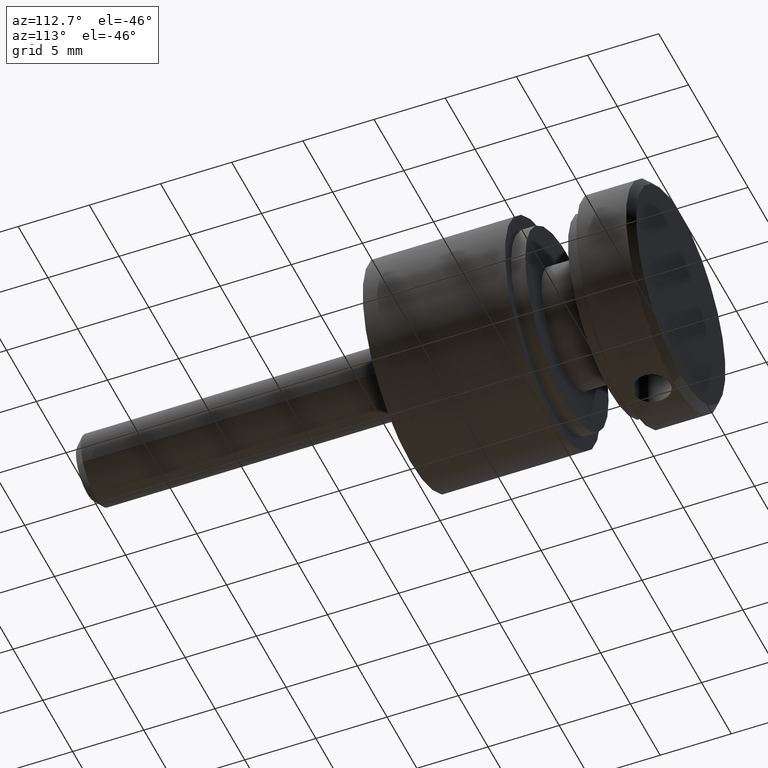
[diagram: clean part render]
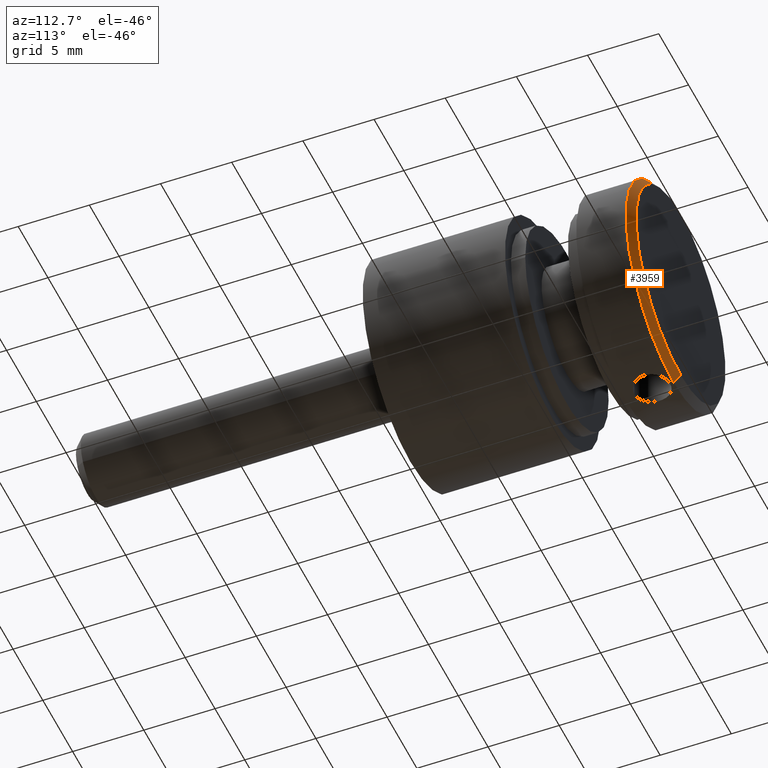
[diagram: same view with one face highlighted and labeled with its STEP entity id]
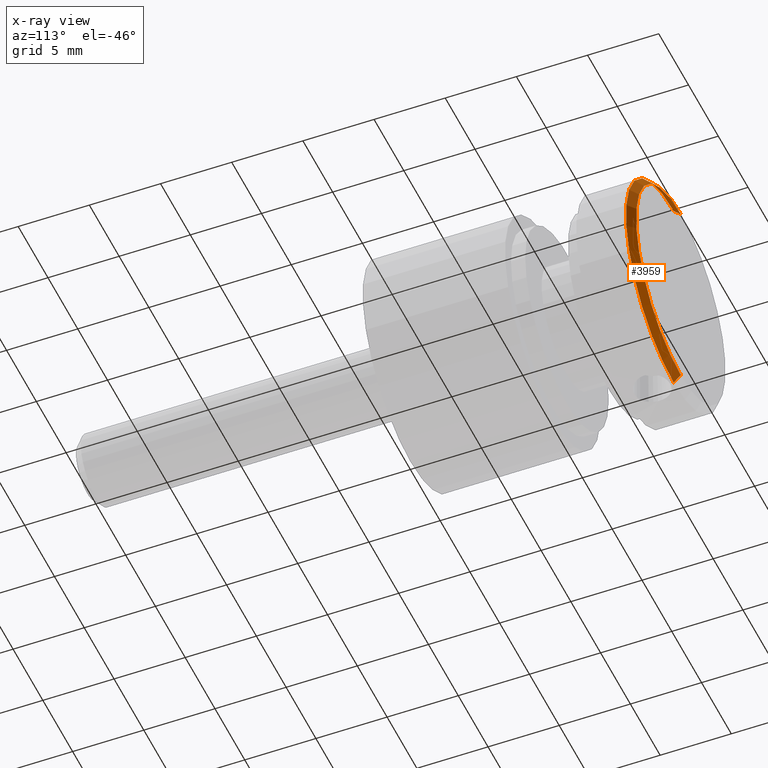
[diagram: x-ray of the same camera — body ghosted, the highlighted face saturated]
A machine part, auxiliary view. The second image highlights one B-rep face of the part: STEP entity #3959.
The next image is the same camera in x-ray: the body ghosted, the highlighted face saturated — about 0% of this face is hidden behind the body in this view.
In plain terms, the highlighted conical surface has half-angle 45 deg.
Its self-contained STEP definition (entity closure, byte-faithful):
#633 = ORIENTED_EDGE ( 'NONE', *, *, #8731, .F. ) ;
#1541 = DIRECTION ( 'NONE',  ( 0.000000000000000000, -0.7071067811865463515, -0.7071067811865487940 ) ) ;
#1968 = DIRECTION ( 'NONE',  ( 0.000000000000000000, 0.000000000000000000, -1.000000000000000000 ) ) ;
#2204 = VECTOR ( 'NONE', #1541, 1000.000000000000000 ) ;
#2333 = VERTEX_POINT ( 'NONE', #2403 ) ;
#2403 = CARTESIAN_POINT ( 'NONE',  ( 0.000000000000000000, 3.500000000000001332, -8.000000000000000000 ) ) ;
#2616 = LINE ( 'NONE', #6081, #13985 ) ;
#3134 = CARTESIAN_POINT ( 'NONE',  ( 0.000000000000000000, 3.500000000000001332, -8.000000000000000000 ) ) ;
#3626 = DIRECTION ( 'NONE',  ( 8.659560562354950115E-17, -0.7071067811865463515, 0.7071067811865487940 ) ) ;
#3702 = CIRCLE ( 'NONE', #10419, 7.500000000000000000 ) ;
#3959 = ADVANCED_FACE ( 'NONE', ( #14503 ), #8818, .T. ) ;
#5267 = DIRECTION ( 'NONE',  ( 0.000000000000000000, 0.000000000000000000, 1.000000000000000000 ) ) ;
#5815 = VERTEX_POINT ( 'NONE', #9450 ) ;
#5995 = ORIENTED_EDGE ( 'NONE', *, *, #11484, .T. ) ;
#6081 = CARTESIAN_POINT ( 'NONE',  ( 9.797174393178825657E-16, 3.500000000000001332, 8.000000000000000000 ) ) ;
#6503 = EDGE_LOOP ( 'NONE', ( #633, #5995, #8869, #16043 ) ) ;
#7646 = CARTESIAN_POINT ( 'NONE',  ( 9.797174393178825657E-16, 3.500000000000001332, 8.000000000000000000 ) ) ;
#8731 = EDGE_CURVE ( 'NONE', #14955, #5815, #3702, .T. ) ;
#8818 = CONICAL_SURFACE ( 'NONE', #10283, 8.000000000000000000, 0.7853981633974500554 ) ;
#8869 = ORIENTED_EDGE ( 'NONE', *, *, #15253, .F. ) ;
#8888 = VERTEX_POINT ( 'NONE', #7646 ) ;
#9450 = CARTESIAN_POINT ( 'NONE',  ( 0.000000000000000000, 4.000000000000000000, -7.500000000000000000 ) ) ;
#9832 = DIRECTION ( 'NONE',  ( -0.000000000000000000, -1.000000000000000000, -0.000000000000000000 ) ) ;
#10283 = AXIS2_PLACEMENT_3D ( 'NONE', #11192, #9832, #1968 ) ;
#10418 = CARTESIAN_POINT ( 'NONE',  ( 0.000000000000000000, 3.500000000000001332, 0.000000000000000000 ) ) ;
#10419 = AXIS2_PLACEMENT_3D ( 'NONE', #13354, #13296, #5267 ) ;
#10474 = DIRECTION ( 'NONE',  ( 0.000000000000000000, 0.000000000000000000, 1.000000000000000000 ) ) ;
#11192 = CARTESIAN_POINT ( 'NONE',  ( 0.000000000000000000, 3.500000000000001332, 0.000000000000000000 ) ) ;
#11484 = EDGE_CURVE ( 'NONE', #14955, #8888, #2616, .T. ) ;
#12939 = LINE ( 'NONE', #3134, #2204 ) ;
#13296 = DIRECTION ( 'NONE',  ( 0.000000000000000000, 1.000000000000000000, 0.000000000000000000 ) ) ;
#13354 = CARTESIAN_POINT ( 'NONE',  ( 0.000000000000000000, 4.000000000000000000, 0.000000000000000000 ) ) ;
#13918 = CIRCLE ( 'NONE', #15109, 8.000000000000000000 ) ;
#13985 = VECTOR ( 'NONE', #3626, 1000.000000000000000 ) ;
#14503 = FACE_OUTER_BOUND ( 'NONE', #6503, .T. ) ;
#14561 = CARTESIAN_POINT ( 'NONE',  ( 9.491012693391985815E-16, 4.000000000000000000, 7.500000000000000000 ) ) ;
#14955 = VERTEX_POINT ( 'NONE', #14561 ) ;
#15109 = AXIS2_PLACEMENT_3D ( 'NONE', #10418, #15890, #10474 ) ;
#15253 = EDGE_CURVE ( 'NONE', #2333, #8888, #13918, .T. ) ;
#15890 = DIRECTION ( 'NONE',  ( -0.000000000000000000, -1.000000000000000000, -0.000000000000000000 ) ) ;
#16043 = ORIENTED_EDGE ( 'NONE', *, *, #17038, .F. ) ;
#17038 = EDGE_CURVE ( 'NONE', #5815, #2333, #12939, .T. ) ;